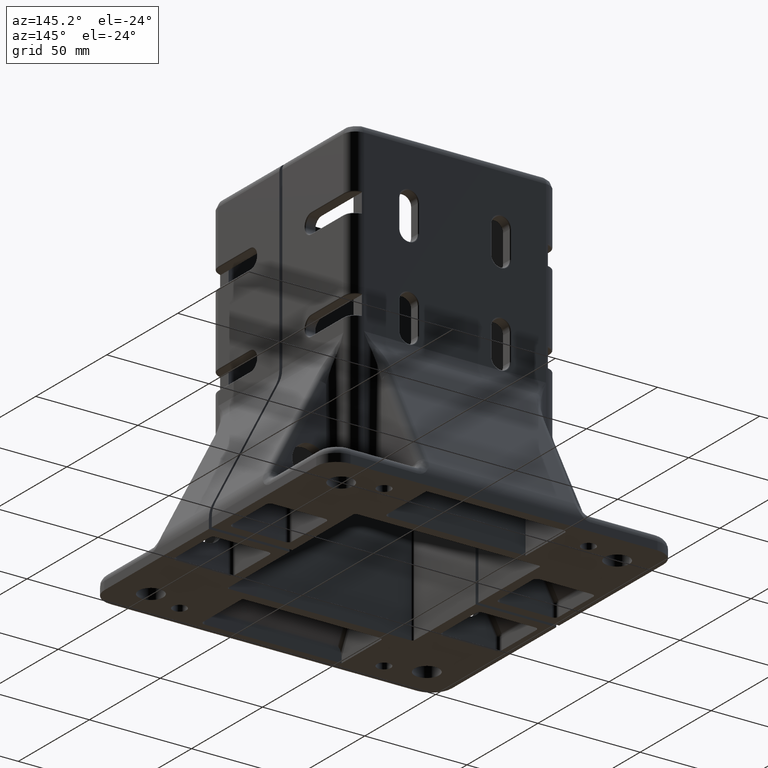
[diagram: clean part render]
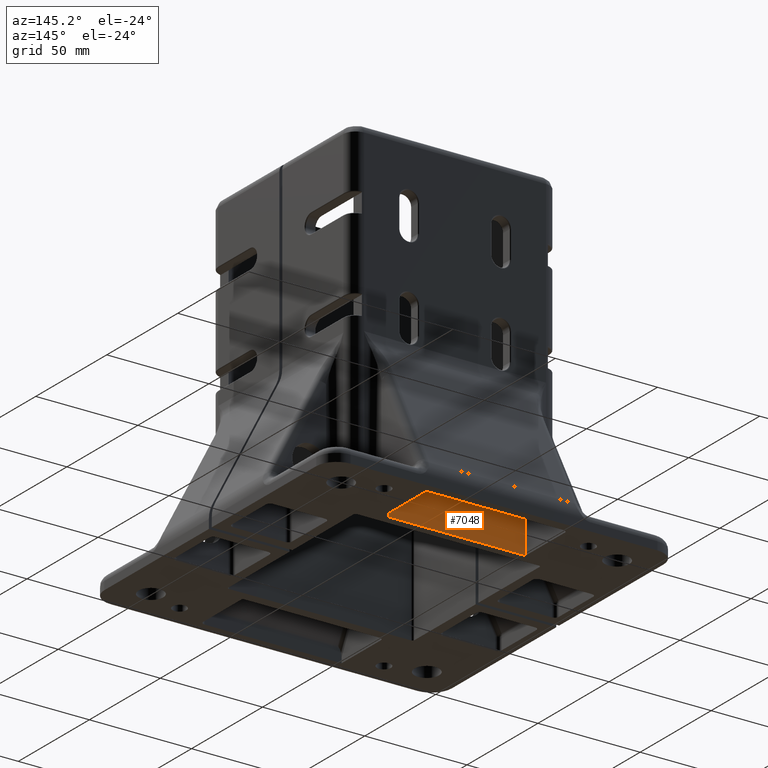
[diagram: same view with one face highlighted and labeled with its STEP entity id]
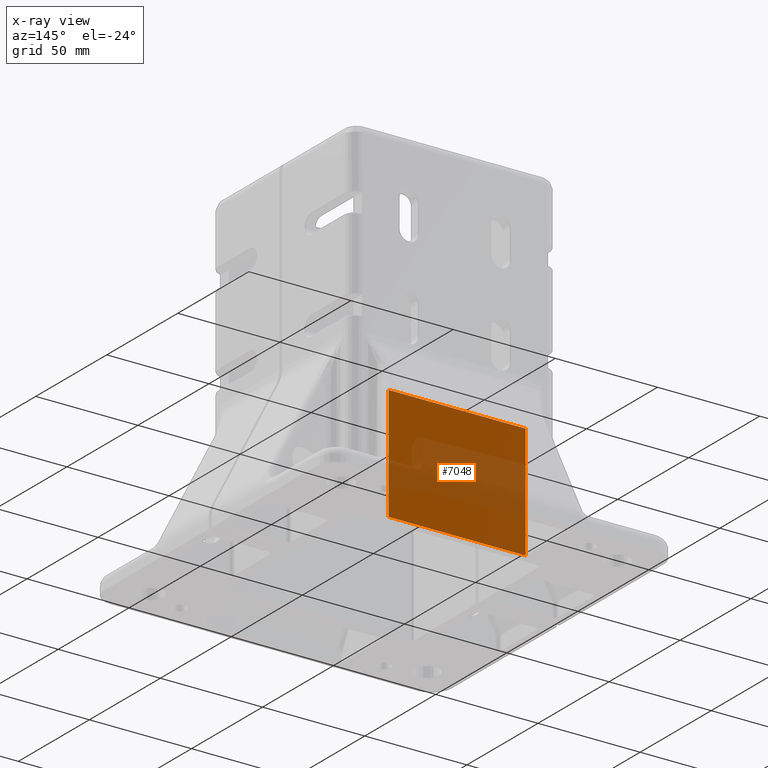
[diagram: x-ray of the same camera — body ghosted, the highlighted face saturated]
A machine part, auxiliary view. The second image highlights one B-rep face of the part: STEP entity #7048.
The next image is the same camera in x-ray: the body ghosted, the highlighted face saturated — about 38% of this face is hidden behind the body in this view.
In plain terms, the highlighted planar face has unit normal (0, -1, 0).
Its self-contained STEP definition (entity closure, byte-faithful):
#172=PLANE('',#7664);
#492=FACE_OUTER_BOUND('',#936,.T.);
#936=EDGE_LOOP('',(#5163,#5164,#5165,#5166));
#1376=LINE('',#11386,#1878);
#1512=LINE('',#12288,#2014);
#1513=LINE('',#12290,#2015);
#1514=LINE('',#12291,#2016);
#1878=VECTOR('',#8665,1000.);
#2014=VECTOR('',#9037,1000.);
#2015=VECTOR('',#9040,1000.);
#2016=VECTOR('',#9041,1000.);
#2825=VERTEX_POINT('',#10714);
#2974=VERTEX_POINT('',#11383);
#2975=VERTEX_POINT('',#11385);
#3115=VERTEX_POINT('',#12286);
#3661=EDGE_CURVE('',#2975,#2974,#1376,.T.);
#3879=EDGE_CURVE('',#3115,#2974,#1512,.T.);
#3880=EDGE_CURVE('',#3115,#2825,#1513,.T.);
#3881=EDGE_CURVE('',#2825,#2975,#1514,.T.);
#5163=ORIENTED_EDGE('',*,*,#3880,.T.);
#5164=ORIENTED_EDGE('',*,*,#3881,.T.);
#5165=ORIENTED_EDGE('',*,*,#3661,.T.);
#5166=ORIENTED_EDGE('',*,*,#3879,.F.);
#7048=ADVANCED_FACE('',(#492),#172,.F.);
#7664=AXIS2_PLACEMENT_3D('',#12289,#9038,#9039);
#8665=DIRECTION('',(-1.,0.,0.));
#9037=DIRECTION('',(0.,0.,-1.));
#9038=DIRECTION('center_axis',(0.,-1.,0.));
#9039=DIRECTION('ref_axis',(0.,0.,-1.));
#9040=DIRECTION('',(1.,0.,0.));
#9041=DIRECTION('',(0.,0.,-1.));
#10714=CARTESIAN_POINT('',(9.97189443438863,25.0472033968336,55.8253451653052));
#11383=CARTESIAN_POINT('',(-57.0281055656114,25.0472033968336,-2.04697370165263E-11));
#11385=CARTESIAN_POINT('',(9.97189443438863,25.0472033968336,-2.04697370165263E-11));
#11386=CARTESIAN_POINT('',(-57.0281055656114,25.0472033968336,-2.04697370165263E-11));
#12286=CARTESIAN_POINT('',(-57.0281055656114,25.0472033968336,55.8253451653052));
#12288=CARTESIAN_POINT('',(-57.0281055656114,25.0472033968336,159.913451974992));
#12289=CARTESIAN_POINT('Origin',(-57.0281055656114,25.0472033968336,159.913451974992));
#12290=CARTESIAN_POINT('',(-57.0281055656114,25.0472033968336,55.8253451653052));
#12291=CARTESIAN_POINT('',(9.97189443438863,25.0472033968336,-2.04697370165263E-11));